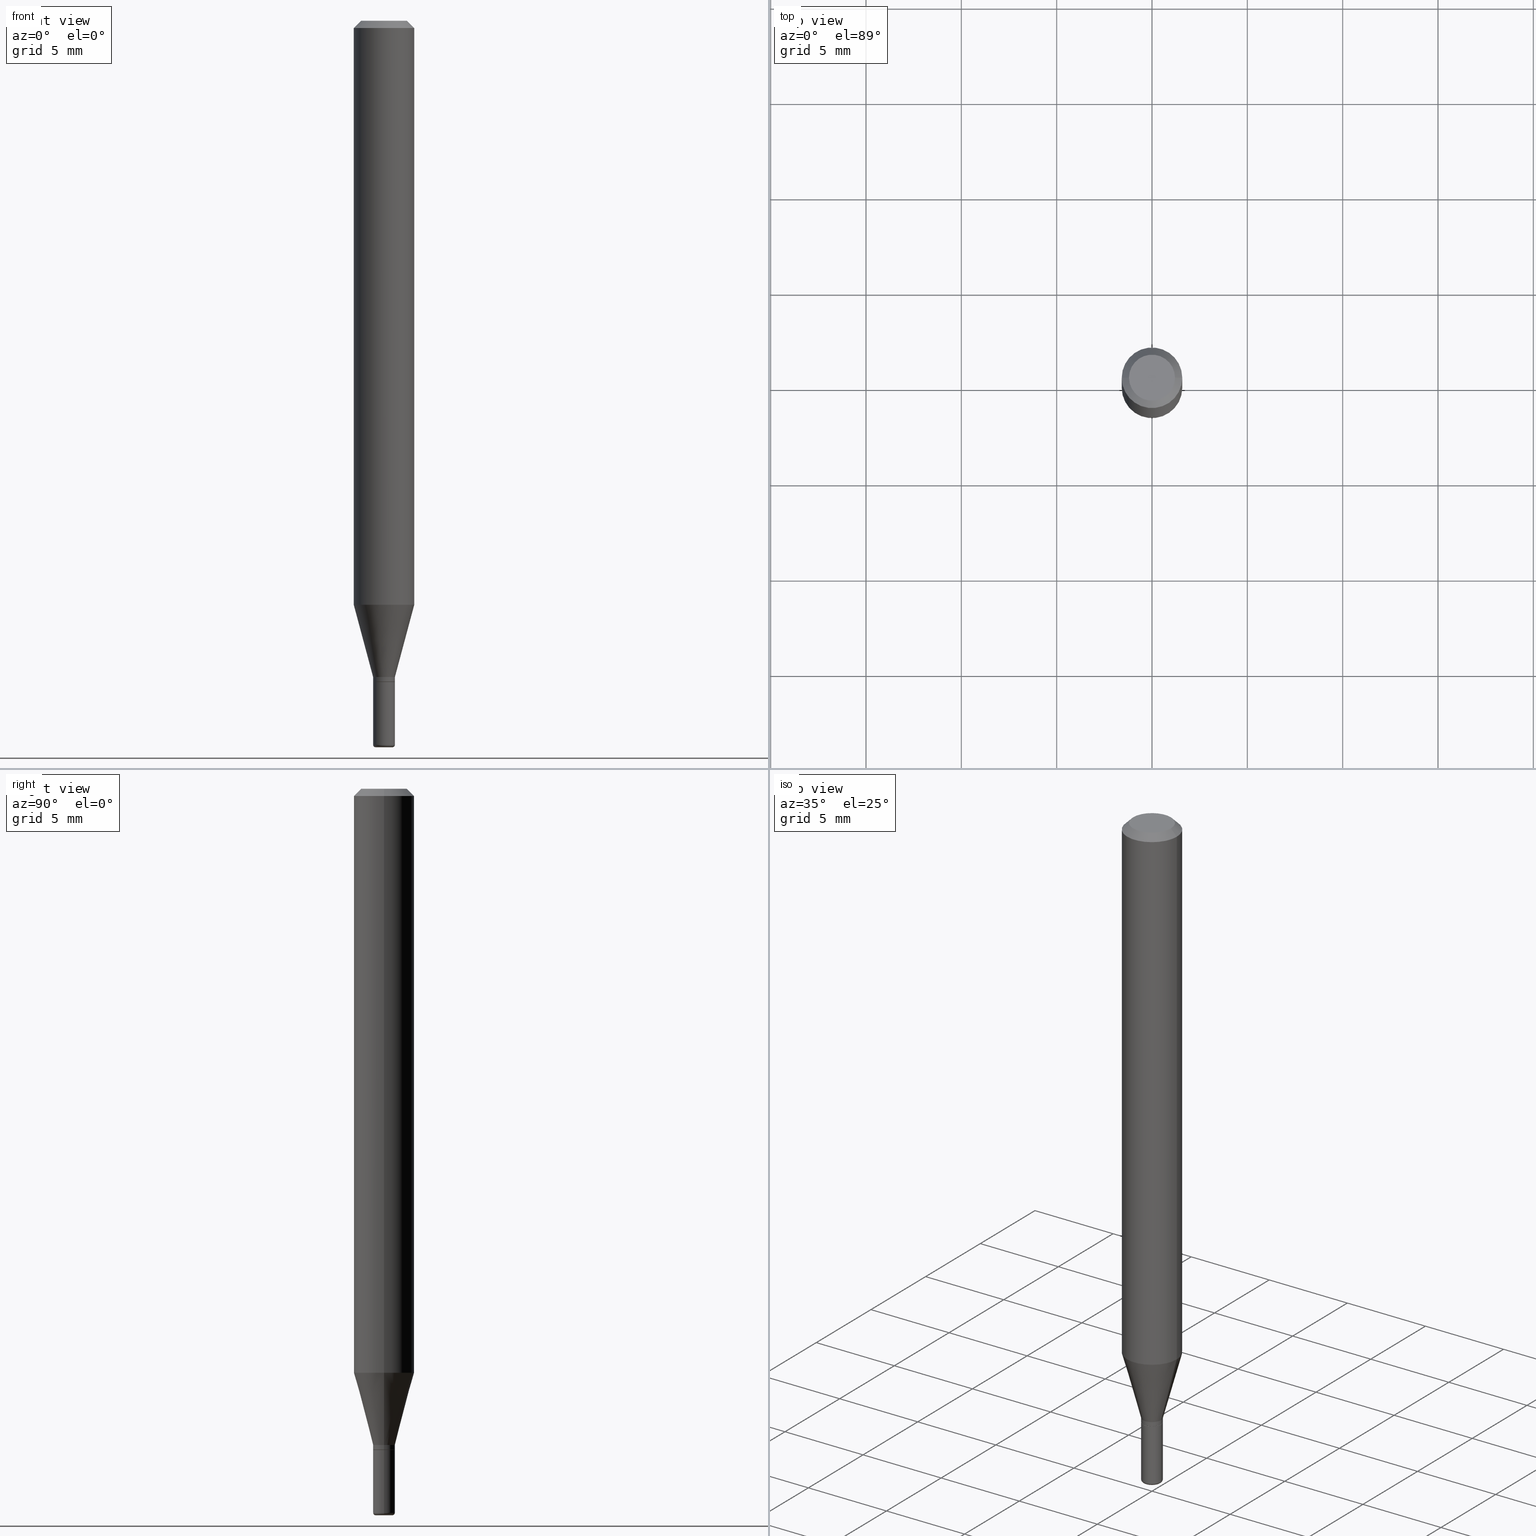
[diagram: canonical four-view strip — front | top / right | iso, engineering-drawing reading convention]
A machine part, canonical four-view strip (front | top / right | iso — engineering-drawing reading convention). The complete STEP part file that produces these views, byte-faithful:
ISO-10303-21;
HEADER;
FILE_DESCRIPTION (( 'STEP AP203' ),
    '1' );
FILE_NAME ('09143.STEP',
    '2024-02-29T22:36:47',
    ( '' ),
    ( '' ),
    'SwSTEP 2.0',
    'SolidWorks 2023',
    '' );
FILE_SCHEMA (( 'CONFIG_CONTROL_DESIGN' ));
ENDSEC;

DATA;
#1 = DIRECTION ( 'NONE',  ( 0.2588190451025206840, 1.565188264969626504E-15, 0.9659258262890682012 ) ) ;
#2 = ORIENTED_EDGE ( 'NONE', *, *, #340, .T. ) ;
#3 = ADVANCED_FACE ( 'NONE', ( #289 ), #60, .T. ) ;
#4 = DIRECTION ( 'NONE',  ( -2.445468806185136597E-29, 3.491481338843145583E-15, 1.000000000000000000 ) ) ;
#5 = ORIENTED_EDGE ( 'NONE', *, *, #256, .F. ) ;
#6 = CLOSED_SHELL ( 'NONE', ( #84, #98, #75, #250, #27, #411 ) ) ;
#7 = CARTESIAN_POINT ( 'NONE',  ( 3.313610232380861411E-29, -4.730957214132463998E-15, -1.355000000000000426 ) ) ;
#8 = VECTOR ( 'NONE', #109, 39.37007874015748143 ) ;
#9 = PERSON_AND_ORGANIZATION ( #518, #266 ) ;
#10 = EDGE_CURVE ( 'NONE', #320, #467, #14, .T. ) ;
#11 = DIRECTION ( 'NONE',  ( -2.445468806185136597E-29, 3.491481338843145583E-15, 1.000000000000000000 ) ) ;
#12 = LINE ( 'NONE', #244, #461 ) ;
#13 = PERSON_AND_ORGANIZATION_ROLE ( 'creator' ) ;
#14 = LINE ( 'NONE', #494, #330 ) ;
#15 = AXIS2_PLACEMENT_3D ( 'NONE', #370, #211, #168 ) ;
#16 = EDGE_CURVE ( 'NONE', #160, #79, #180, .T. ) ;
#17 = APPROVAL_PERSON_ORGANIZATION ( #487, #231, #57 ) ;
#18 = FACE_OUTER_BOUND ( 'NONE', #285, .T. ) ;
#19 = APPROVAL_DATE_TIME ( #174, #356 ) ;
#20 = DIRECTION ( 'NONE',  ( -2.445468806185136597E-29, 3.491481338843145583E-15, 1.000000000000000000 ) ) ;
#21 = APPLICATION_CONTEXT ( 'configuration controlled 3d designs of mechanical parts and assemblies' ) ;
#22 = EDGE_LOOP ( 'NONE', ( #106, #142, #394, #475 ) ) ;
#23 = CARTESIAN_POINT ( 'NONE',  ( -0.01749999999999999820, -5.086384757765590495E-15, -1.500000000000000444 ) ) ;
#24 = TOROIDAL_SURFACE ( 'NONE', #304, 0.01749999999999999820, 0.005000000000000179648 ) ;
#25 = AXIS2_PLACEMENT_3D ( 'NONE', #199, #312, #195 ) ;
#26 = DIRECTION ( 'NONE',  ( 1.000000000000000000, -6.982962677686283277E-15, 0.000000000000000000 ) ) ;
#27 = ADVANCED_FACE ( 'NONE', ( #412 ), #114, .T. ) ;
#28 = VERTEX_POINT ( 'NONE', #329 ) ;
#29 = DIRECTION ( 'NONE',  ( 0.7071067811865479058, -7.319954787623257623E-15, -0.7071067811865471286 ) ) ;
#30 = FACE_OUTER_BOUND ( 'NONE', #196, .T. ) ;
#31 = ORIENTED_EDGE ( 'NONE', *, *, #317, .F. ) ;
#32 = EDGE_CURVE ( 'NONE', #334, #113, #12, .T. ) ;
#33 = CONICAL_SURFACE ( 'NONE', #290, 0.02250000000000007896, 0.2617993877991494078 ) ;
#34 = CARTESIAN_POINT ( 'NONE',  ( 0.01749999999999999820, -5.359423855124228949E-15, -1.500000000000000444 ) ) ;
#35 = ORIENTED_EDGE ( 'NONE', *, *, #32, .F. ) ;
#36 = DIRECTION ( 'NONE',  ( 1.000000000000000000, -6.982962677686250144E-15, 0.000000000000000000 ) ) ;
#37 = ORIENTED_EDGE ( 'NONE', *, *, #287, .T. ) ;
#38 = CARTESIAN_POINT ( 'NONE',  ( -0.06250000000000000000, 4.440892098500626162E-16, -3.074334431409316114E-30 ) ) ;
#39 = VERTEX_POINT ( 'NONE', #93 ) ;
#40 = DIRECTION ( 'NONE',  ( -2.445468806185136597E-29, 3.491481338843145583E-15, 1.000000000000000000 ) ) ;
#41 = CIRCLE ( 'NONE', #348, 0.02249999999999999917 ) ;
#42 = ORIENTED_EDGE ( 'NONE', *, *, #256, .T. ) ;
#43 = PRODUCT_DEFINITION_FORMATION_WITH_SPECIFIED_SOURCE ( 'ANY', '', #508, .NOT_KNOWN. ) ;
#44 = ADVANCED_FACE ( 'NONE', ( #414 ), #216, .T. ) ;
#45 = DIRECTION ( 'NONE',  ( -2.445468806185136597E-29, 3.491481338843145583E-15, 1.000000000000000000 ) ) ;
#46 = ORIENTED_EDGE ( 'NONE', *, *, #140, .F. ) ;
#47 = DIRECTION ( 'NONE',  ( -0.7071067811864267805, 7.493145998869918709E-15, 0.7071067811866682540 ) ) ;
#48 = PRODUCT_RELATED_PRODUCT_CATEGORY ( 'detail', '', ( #508 ) ) ;
#49 = COORDINATED_UNIVERSAL_TIME_OFFSET ( 5, 0, .BEHIND. ) ;
#50 = CYLINDRICAL_SURFACE ( 'NONE', #314, 0.06250000000000000000 ) ;
#51 = AXIS2_PLACEMENT_3D ( 'NONE', #404, #11, #446 ) ;
#52 = SECURITY_CLASSIFICATION ( '', '', #135 ) ;
#53 = EDGE_CURVE ( 'NONE', #265, #39, #257, .T. ) ;
#54 = EDGE_CURVE ( 'NONE', #308, #277, #94, .T. ) ;
#55 = APPROVAL_DATE_TIME ( #445, #417 ) ;
#56 = LINE ( 'NONE', #92, #441 ) ;
#57 = APPROVAL_ROLE ( '' ) ;
#58 = DIRECTION ( 'NONE',  ( 1.000000000000000000, -6.982962677686286432E-15, 0.000000000000000000 ) ) ;
#59 = EDGE_CURVE ( 'NONE', #113, #308, #56, .T. ) ;
#60 = CYLINDRICAL_SURFACE ( 'NONE', #61, 0.06250000000000000000 ) ;
#61 = AXIS2_PLACEMENT_3D ( 'NONE', #485, #170, #215 ) ;
#62 = AXIS2_PLACEMENT_3D ( 'NONE', #91, #402, #128 ) ;
#63 = COORDINATED_UNIVERSAL_TIME_OFFSET ( 5, 0, .BEHIND. ) ;
#64 = DIRECTION ( 'NONE',  ( -2.445468806185136877E-29, 3.491481338843145188E-15, 1.000000000000000000 ) ) ;
#65 = PERSON_AND_ORGANIZATION ( #518, #266 ) ;
#66 = DIRECTION ( 'NONE',  ( 1.000000000000000000, -6.982962677686250144E-15, 0.000000000000000000 ) ) ;
#67 = CC_DESIGN_DATE_AND_TIME_ASSIGNMENT ( #247, #328, ( #510 ) ) ;
#68 = CARTESIAN_POINT ( 'NONE',  ( 3.338064920442711836E-29, -4.765872027520893280E-15, -1.364999999999999991 ) ) ;
#69 = AXIS2_PLACEMENT_3D ( 'NONE', #303, #221, #507 ) ;
#70 = CIRCLE ( 'NONE', #473, 0.005000000000000181383 ) ;
#71 = CARTESIAN_POINT ( 'NONE',  ( 3.668203209277632395E-31, -5.237222008264614861E-17, -0.01499999999999970281 ) ) ;
#72 = DIRECTION ( 'NONE',  ( -0.7071067811865479058, 2.468850131082261005E-15, -0.7071067811865471286 ) ) ;
#73 = ADVANCED_FACE ( 'NONE', ( #406 ), #33, .T. ) ;
#74 = DIRECTION ( 'NONE',  ( 1.000000000000000000, -6.982962677686265922E-15, 4.876176775795935793E-29 ) ) ;
#75 = ADVANCED_FACE ( 'NONE', ( #375 ), #136, .F. ) ;
#76 = CIRCLE ( 'NONE', #366, 0.02250000000000017958 ) ;
#77 = AXIS2_PLACEMENT_3D ( 'NONE', #354, #515, #359 ) ;
#78 = CARTESIAN_POINT ( 'NONE',  ( 3.655975865246779683E-29, -5.219764601570503930E-15, -1.495000000000000329 ) ) ;
#79 = VERTEX_POINT ( 'NONE', #333 ) ;
#80 = DIRECTION ( 'NONE',  ( -2.445468806185136597E-29, 3.491481338843145583E-15, 1.000000000000000000 ) ) ;
#81 = VERTEX_POINT ( 'NONE', #492 ) ;
#82 = CARTESIAN_POINT ( 'NONE',  ( 0.02249999999999999917, -4.922988687768834913E-15, -1.364999999999999991 ) ) ;
#83 = EDGE_LOOP ( 'NONE', ( #269, #89, #353, #302 ) ) ;
#84 = ADVANCED_FACE ( 'NONE', ( #205 ), #24, .T. ) ;
#85 = DIRECTION ( 'NONE',  ( -1.000000000000000000, 7.105427357601055501E-15, 0.000000000000000000 ) ) ;
#86 = CONICAL_SURFACE ( 'NONE', #222, 0.06250000000000000000, 0.7853981633974488341 ) ;
#87 = ORIENTED_EDGE ( 'NONE', *, *, #272, .F. ) ;
#88 = AXIS2_PLACEMENT_3D ( 'NONE', #350, #45, #436 ) ;
#89 = ORIENTED_EDGE ( 'NONE', *, *, #460, .T. ) ;
#90 = ADVANCED_FACE ( 'NONE', ( #453 ), #50, .T. ) ;
#91 = CARTESIAN_POINT ( 'NONE',  ( 0.000000000000000000, 0.000000000000000000, 0.000000000000000000 ) ) ;
#92 = CARTESIAN_POINT ( 'NONE',  ( -0.02250000000000008590, 1.598721155460231522E-16, -1.106760395307357984E-30 ) ) ;
#93 = CARTESIAN_POINT ( 'NONE',  ( -0.04750000000000000749, 3.578768372314221353E-16, 2.731847993664239060E-16 ) ) ;
#94 = CIRCLE ( 'NONE', #321, 0.02250000000000007896 ) ;
#95 = AXIS2_PLACEMENT_3D ( 'NONE', #288, #166, #323 ) ;
#96 = COORDINATED_UNIVERSAL_TIME_OFFSET ( 5, 0, .BEHIND. ) ;
#97 = CARTESIAN_POINT ( 'NONE',  ( 3.313610232380861411E-29, -4.730957214132463998E-15, -1.355000000000000426 ) ) ;
#98 = ADVANCED_FACE ( 'NONE', ( #18 ), #327, .T. ) ;
#99 = DIRECTION ( 'NONE',  ( 1.000000000000000000, -6.982962677686255667E-15, 4.883557194083108977E-29 ) ) ;
#100 = DIRECTION ( 'NONE',  ( -0.2588190451025206840, 5.211531920934545520E-15, 0.9659258262890682012 ) ) ;
#101 = APPROVAL_PERSON_ORGANIZATION ( #123, #417, #243 ) ;
#102 = FACE_OUTER_BOUND ( 'NONE', #440, .T. ) ;
#103 = PERSON_AND_ORGANIZATION ( #518, #266 ) ;
#104 = CARTESIAN_POINT ( 'NONE',  ( 3.338064920442711836E-29, -4.765872027520893280E-15, -1.364999999999999991 ) ) ;
#105 = CARTESIAN_POINT ( 'NONE',  ( 0.02200000000000008546, -4.919497206429991905E-15, -1.364999999999999991 ) ) ;
#106 = ORIENTED_EDGE ( 'NONE', *, *, #59, .F. ) ;
#107 = CIRCLE ( 'NONE', #397, 0.02250000000000008937 ) ;
#108 = CC_DESIGN_APPROVAL ( #231, ( #43 ) ) ;
#109 = DIRECTION ( 'NONE',  ( 0.7071067811864267805, -2.468850131080992517E-15, 0.7071067811866682540 ) ) ;
#110 = DIRECTION ( 'NONE',  ( 1.000000000000000000, -6.982962677686266711E-15, 4.852736867747365086E-29 ) ) ;
#111 = ORIENTED_EDGE ( 'NONE', *, *, #32, .T. ) ;
#112 = FACE_OUTER_BOUND ( 'NONE', #22, .T. ) ;
#113 = VERTEX_POINT ( 'NONE', #242 ) ;
#114 = TOROIDAL_SURFACE ( 'NONE', #51, 0.01749999999999999820, 0.005000000000000179648 ) ;
#115 = CIRCLE ( 'NONE', #423, 0.02250000000000017958 ) ;
#116 = CARTESIAN_POINT ( 'NONE',  ( 0.02250000000000008937, -4.921242947099413409E-15, -1.364499999999999824 ) ) ;
#117 = ORIENTED_EDGE ( 'NONE', *, *, #224, .F. ) ;
#118 = EDGE_CURVE ( 'NONE', #81, #200, #505, .T. ) ;
#119 = CARTESIAN_POINT ( 'NONE',  ( 3.338064920442711836E-29, -4.765872027520893280E-15, -1.364999999999999991 ) ) ;
#120 = EDGE_LOOP ( 'NONE', ( #435, #139, #144, #316 ) ) ;
#121 = CARTESIAN_POINT ( 'NONE',  ( -0.02200000000000008546, -4.606903398479559111E-15, -1.364999999999999991 ) ) ;
#122 = ORIENTED_EDGE ( 'NONE', *, *, #138, .T. ) ;
#123 = PERSON_AND_ORGANIZATION ( #518, #266 ) ;
#124 = CIRCLE ( 'NONE', #380, 0.06250000000000000000 ) ;
#125 = CC_DESIGN_PERSON_AND_ORGANIZATION_ASSIGNMENT ( #9, #204, ( #508 ) ) ;
#126 = ORIENTED_EDGE ( 'NONE', *, *, #324, .F. ) ;
#127 = LOCAL_TIME ( 17, 36, 47.00000000000000000, #96 ) ;
#128 = DIRECTION ( 'NONE',  ( 1.000000000000000000, -6.982962677686265922E-15, 4.876176775795935793E-29 ) ) ;
#129 = ORIENTED_EDGE ( 'NONE', *, *, #324, .T. ) ;
#130 = CARTESIAN_POINT ( 'NONE',  ( 0.000000000000000000, 0.000000000000000000, 0.000000000000000000 ) ) ;
#131 = APPROVAL_STATUS ( 'not_yet_approved' ) ;
#132 = DIRECTION ( 'NONE',  ( -2.445468806185136597E-29, 3.491481338843145583E-15, 1.000000000000000000 ) ) ;
#133 = VECTOR ( 'NONE', #100, 39.37007874015748854 ) ;
#134 =( GEOMETRIC_REPRESENTATION_CONTEXT ( 3 ) GLOBAL_UNCERTAINTY_ASSIGNED_CONTEXT ( ( #155 ) ) GLOBAL_UNIT_ASSIGNED_CONTEXT ( ( #482, #171, #294 ) ) REPRESENTATION_CONTEXT ( 'NONE', 'WORKASPACE' ) );
#135 = SECURITY_CLASSIFICATION_LEVEL ( 'unclassified' ) ;
#136 = PLANE ( 'NONE',  #15 ) ;
#137 = DIRECTION ( 'NONE',  ( 1.000000000000000000, -6.982962677686266711E-15, 0.000000000000000000 ) ) ;
#138 = EDGE_CURVE ( 'NONE', #308, #79, #377, .T. ) ;
#139 = ORIENTED_EDGE ( 'NONE', *, *, #59, .T. ) ;
#140 = EDGE_CURVE ( 'NONE', #28, #235, #124, .T. ) ;
#141 = DIRECTION ( 'NONE',  ( -2.445468806185136877E-29, 3.491481338843145188E-15, 1.000000000000000000 ) ) ;
#142 = ORIENTED_EDGE ( 'NONE', *, *, #164, .T. ) ;
#143 = PLANE ( 'NONE',  #450 ) ;
#144 = ORIENTED_EDGE ( 'NONE', *, *, #504, .F. ) ;
#145 = LINE ( 'NONE', #420, #516 ) ;
#146 = ORIENTED_EDGE ( 'NONE', *, *, #499, .T. ) ;
#147 = CIRCLE ( 'NONE', #187, 0.01749999999999999820 ) ;
#148 = LOCAL_TIME ( 17, 36, 47.00000000000000000, #337 ) ;
#149 = DIRECTION ( 'NONE',  ( 1.000000000000000000, -6.982962677686261977E-15, 0.000000000000000000 ) ) ;
#150 = EDGE_LOOP ( 'NONE', ( #87, #31 ) ) ;
#151 = LINE ( 'NONE', #201, #481 ) ;
#152 = EDGE_LOOP ( 'NONE', ( #37, #428 ) ) ;
#153 = LINE ( 'NONE', #38, #349 ) ;
#154 = ORIENTED_EDGE ( 'NONE', *, *, #317, .T. ) ;
#155 = UNCERTAINTY_MEASURE_WITH_UNIT (LENGTH_MEASURE( 1.000000000000000082E-05 ), #482, 'distance_accuracy_value', 'NONE');
#156 = LOCAL_TIME ( 17, 36, 47.00000000000000000, #49 ) ;
#157 = CARTESIAN_POINT ( 'NONE',  ( 0.06250000000000000000, -4.364351673553916694E-16, 3.047610484872459871E-30 ) ) ;
#158 = ORIENTED_EDGE ( 'NONE', *, *, #176, .T. ) ;
#159 = CARTESIAN_POINT ( 'NONE',  ( 3.338064920442711836E-29, -4.765872027520893280E-15, -1.364999999999999991 ) ) ;
#160 = VERTEX_POINT ( 'NONE', #502 ) ;
#161 = ADVANCED_FACE ( 'NONE', ( #30 ), #143, .F. ) ;
#162 = DIRECTION ( 'NONE',  ( 7.105427357601001859E-15, 1.000000000000000000, -3.491481338843145583E-15 ) ) ;
#163 = ORIENTED_EDGE ( 'NONE', *, *, #392, .F. ) ;
#164 = EDGE_CURVE ( 'NONE', #113, #479, #107, .T. ) ;
#165 = AXIS2_PLACEMENT_3D ( 'NONE', #130, #296, #454 ) ;
#166 = DIRECTION ( 'NONE',  ( 0.000000000000000000, 0.000000000000000000, 1.000000000000000000 ) ) ;
#167 = DIRECTION ( 'NONE',  ( -1.000000000000000000, 6.982962677686266711E-15, 0.000000000000000000 ) ) ;
#168 = DIRECTION ( 'NONE',  ( -1.000000000000000000, 6.982962677686265922E-15, -4.876176775795935793E-29 ) ) ;
#169 = CALENDAR_DATE ( 2024, 29, 2 ) ;
#170 = DIRECTION ( 'NONE',  ( -2.445468806185136597E-29, 3.491481338843145583E-15, 1.000000000000000000 ) ) ;
#171 =( NAMED_UNIT ( * ) PLANE_ANGLE_UNIT ( ) SI_UNIT ( $, .RADIAN. ) );
#172 = DIRECTION ( 'NONE',  ( -2.445468806185136597E-29, 3.491481338843145583E-15, 1.000000000000000000 ) ) ;
#173 = CIRCLE ( 'NONE', #372, 0.02249999999999999917 ) ;
#174 = DATE_AND_TIME ( #299, #148 ) ;
#175 = DIRECTION ( 'NONE',  ( -2.445468806185136597E-29, 3.491481338843145583E-15, 1.000000000000000000 ) ) ;
#176 = EDGE_CURVE ( 'NONE', #39, #28, #300, .T. ) ;
#177 = CARTESIAN_POINT ( 'NONE',  ( 0.02250000000000007896, -4.888073874380405630E-15, -1.355000000000000426 ) ) ;
#178 = DIRECTION ( 'NONE',  ( 1.000000000000000000, -6.982962677686269077E-15, 0.000000000000000000 ) ) ;
#179 = VERTEX_POINT ( 'NONE', #378 ) ;
#180 = CIRCLE ( 'NONE', #471, 0.06250000000000000000 ) ;
#181 = AXIS2_PLACEMENT_3D ( 'NONE', #119, #239, #399 ) ;
#182 = CARTESIAN_POINT ( 'NONE',  ( 0.01749999999999999820, -5.341966448430012335E-15, -1.495000000000000107 ) ) ;
#183 = MANIFOLD_SOLID_BREP ( 'Body-Move/Copy2[2]', #229 ) ;
#184 = DIRECTION ( 'NONE',  ( -2.445468806185136597E-29, 3.491481338843145583E-15, 1.000000000000000000 ) ) ;
#185 = CARTESIAN_POINT ( 'NONE',  ( -0.02250000000000008937, 1.598721155460231769E-16, -1.106760395307358334E-30 ) ) ;
#186 = ORIENTED_EDGE ( 'NONE', *, *, #164, .F. ) ;
#187 = AXIS2_PLACEMENT_3D ( 'NONE', #438, #4, #36 ) ;
#188 = CONICAL_SURFACE ( 'NONE', #181, 0.02200000000000008546, 0.7853981633972775267 ) ;
#189 = PLANE ( 'NONE',  #292 ) ;
#190 = EDGE_LOOP ( 'NONE', ( #35, #2, #517, #186 ) ) ;
#191 = ADVANCED_BREP_SHAPE_REPRESENTATION ( '09143', ( #449, #183, #95 ), #134 ) ;
#192 = CC_DESIGN_PERSON_AND_ORGANIZATION_ASSIGNMENT ( #491, #331, ( #43 ) ) ;
#193 = DIRECTION ( 'NONE',  ( 1.000000000000000000, -6.982962677686255667E-15, 0.000000000000000000 ) ) ;
#194 = ORIENTED_EDGE ( 'NONE', *, *, #54, .T. ) ;
#195 = DIRECTION ( 'NONE',  ( 1.000000000000000000, -6.982962677686286432E-15, 0.000000000000000000 ) ) ;
#196 = EDGE_LOOP ( 'NONE', ( #431, #503 ) ) ;
#197 = AXIS2_PLACEMENT_3D ( 'NONE', #419, #20, #66 ) ;
#198 = CIRCLE ( 'NONE', #322, 0.02250000000000008937 ) ;
#199 = CARTESIAN_POINT ( 'NONE',  ( 3.313610232380861411E-29, -4.730957214132463998E-15, -1.355000000000000426 ) ) ;
#200 = VERTEX_POINT ( 'NONE', #260 ) ;
#201 = CARTESIAN_POINT ( 'NONE',  ( 0.02250000000000007896, -4.888073874380405630E-15, -1.355000000000000426 ) ) ;
#202 = ORIENTED_EDGE ( 'NONE', *, *, #176, .F. ) ;
#203 = DESIGN_CONTEXT ( 'detailed design', #21, 'design' ) ;
#204 = PERSON_AND_ORGANIZATION_ROLE ( 'design_owner' ) ;
#205 = FACE_OUTER_BOUND ( 'NONE', #360, .T. ) ;
#206 = AXIS2_PLACEMENT_3D ( 'NONE', #307, #184, #149 ) ;
#207 =( LENGTH_UNIT ( ) NAMED_UNIT ( * ) SI_UNIT ( $, .METRE. ) );
#208 = AXIS2_PLACEMENT_3D ( 'NONE', #234, #393, #74 ) ;
#209 = DIRECTION ( 'NONE',  ( -2.445468806185136597E-29, 3.491481338843145583E-15, 1.000000000000000000 ) ) ;
#210 = FACE_OUTER_BOUND ( 'NONE', #120, .T. ) ;
#211 = DIRECTION ( 'NONE',  ( 2.438088387897960049E-29, -3.491481338843145188E-15, -1.000000000000000000 ) ) ;
#212 = DIRECTION ( 'NONE',  ( 1.000000000000000000, -6.982962677686286432E-15, 0.000000000000000000 ) ) ;
#213 = ORIENTED_EDGE ( 'NONE', *, *, #486, .T. ) ;
#214 = APPLICATION_PROTOCOL_DEFINITION ( 'international standard', 'config_control_design', 1994, #403 ) ;
#215 = DIRECTION ( 'NONE',  ( 1.000000000000000000, -6.982962677686266711E-15, 4.876176775795935793E-29 ) ) ;
#216 = CONICAL_SURFACE ( 'NONE', #430, 0.06250000000000000000, 0.7853981633974488341 ) ;
#217 = ADVANCED_FACE ( 'NONE', ( #226 ), #86, .T. ) ;
#218 = CALENDAR_DATE ( 2024, 29, 2 ) ;
#219 = CARTESIAN_POINT ( 'NONE',  ( 3.668203209277632395E-31, -5.237222008264614861E-17, -0.01499999999999970281 ) ) ;
#220 = CARTESIAN_POINT ( 'NONE',  ( -0.06250000000000000000, 3.840629472727455270E-16, -0.01499999999999970281 ) ) ;
#221 = DIRECTION ( 'NONE',  ( -2.445468806185136597E-29, 3.491481338843145583E-15, 1.000000000000000000 ) ) ;
#222 = AXIS2_PLACEMENT_3D ( 'NONE', #219, #381, #385 ) ;
#223 = DIRECTION ( 'NONE',  ( 2.438088387897960049E-29, -3.491481338843145188E-15, -1.000000000000000000 ) ) ;
#224 = EDGE_CURVE ( 'NONE', #265, #235, #145, .T. ) ;
#225 = ORIENTED_EDGE ( 'NONE', *, *, #118, .T. ) ;
#226 = FACE_OUTER_BOUND ( 'NONE', #477, .T. ) ;
#227 = PLANE ( 'NONE',  #208 ) ;
#228 = EDGE_LOOP ( 'NONE', ( #343, #459 ) ) ;
#229 = CLOSED_SHELL ( 'NONE', ( #506, #413, #44, #3, #484, #73, #90, #217, #161, #379, #255, #425 ) ) ;
#230 = AXIS2_PLACEMENT_3D ( 'NONE', #159, #427, #315 ) ;
#231 = APPROVAL ( #131, 'UNSPECIFIED' ) ;
#232 = DIRECTION ( 'NONE',  ( 1.000000000000000000, -6.982962677686266711E-15, 0.000000000000000000 ) ) ;
#233 = ORIENTED_EDGE ( 'NONE', *, *, #53, .F. ) ;
#234 = CARTESIAN_POINT ( 'NONE',  ( 3.582686580359767159E-29, -5.359686688179454114E-15, -1.500000000000000444 ) ) ;
#235 = VERTEX_POINT ( 'NONE', #347 ) ;
#236 = PRODUCT_DEFINITION_SHAPE ( 'NONE', 'NONE',  #510 ) ;
#237 = DIRECTION ( 'NONE',  ( 1.000000000000000000, -6.982962677686283277E-15, 0.000000000000000000 ) ) ;
#238 = ORIENTED_EDGE ( 'NONE', *, *, #460, .F. ) ;
#239 = DIRECTION ( 'NONE',  ( -2.445468806185136597E-29, 3.491481338843145583E-15, 1.000000000000000000 ) ) ;
#240 = ORIENTED_EDGE ( 'NONE', *, *, #270, .T. ) ;
#241 = DIRECTION ( 'NONE',  ( -2.445468806185136597E-29, 3.491481338843145583E-15, 1.000000000000000000 ) ) ;
#242 = CARTESIAN_POINT ( 'NONE',  ( -0.02250000000000008937, -4.604254171305447910E-15, -1.364499999999999824 ) ) ;
#243 = APPROVAL_ROLE ( '' ) ;
#244 = CARTESIAN_POINT ( 'NONE',  ( -0.02200000000000008546, -4.609552625653671101E-15, -1.364999999999999991 ) ) ;
#245 = CC_DESIGN_DATE_AND_TIME_ASSIGNMENT ( #432, #418, ( #52 ) ) ;
#246 = AXIS2_PLACEMENT_3D ( 'NONE', #252, #409, #488 ) ;
#247 = DATE_AND_TIME ( #483, #156 ) ;
#248 = CIRCLE ( 'NONE', #358, 0.04750000000000000749 ) ;
#249 = DIRECTION ( 'NONE',  ( 2.445468806185136597E-29, -3.491481338843145583E-15, -1.000000000000000000 ) ) ;
#250 = ADVANCED_FACE ( 'NONE', ( #102 ), #457, .T. ) ;
#251 = DATE_AND_TIME ( #291, #127 ) ;
#252 = CARTESIAN_POINT ( 'NONE',  ( -6.680649051745406845E-45, 9.538196290434862081E-31, 2.731847993664263218E-16 ) ) ;
#253 = MECHANICAL_CONTEXT ( 'NONE', #403, 'mechanical' ) ;
#254 = DIRECTION ( 'NONE',  ( -2.445468806185136597E-29, 3.491481338843145583E-15, 1.000000000000000000 ) ) ;
#255 = ADVANCED_FACE ( 'NONE', ( #344 ), #283, .T. ) ;
#256 = EDGE_CURVE ( 'NONE', #400, #320, #357, .T. ) ;
#257 = CIRCLE ( 'NONE', #246, 0.04750000000000000749 ) ;
#258 = CARTESIAN_POINT ( 'NONE',  ( 0.04750000000000000749, -4.035134999187568762E-16, 2.731847993664288856E-16 ) ) ;
#259 = CIRCLE ( 'NONE', #230, 0.02200000000000008546 ) ;
#260 = CARTESIAN_POINT ( 'NONE',  ( -0.02249999999999999917, -4.832946198999675921E-15, -1.364999999999999991 ) ) ;
#261 = DIRECTION ( 'NONE',  ( -2.445468806185136597E-29, 3.491481338843145583E-15, 1.000000000000000000 ) ) ;
#262 = EDGE_CURVE ( 'NONE', #479, #277, #301, .T. ) ;
#263 = PERSON_AND_ORGANIZATION_ROLE ( 'classification_officer' ) ;
#264 = DIRECTION ( 'NONE',  ( -2.445468806185136597E-29, 3.491481338843145583E-15, 1.000000000000000000 ) ) ;
#265 = VERTEX_POINT ( 'NONE', #258 ) ;
#266 = ORGANIZATION ( 'UNSPECIFIED', 'UNSPECIFIED', '' ) ;
#267 = CARTESIAN_POINT ( 'NONE',  ( 0.02250000000000008590, -1.571166602479415828E-16, 1.097139774554089687E-30 ) ) ;
#268 = CARTESIAN_POINT ( 'NONE',  ( 0.02250000000000017958, -5.376881261818446351E-15, -1.495000000000000329 ) ) ;
#269 = ORIENTED_EDGE ( 'NONE', *, *, #16, .T. ) ;
#270 = EDGE_CURVE ( 'NONE', #79, #160, #415, .T. ) ;
#271 = FACE_OUTER_BOUND ( 'NONE', #150, .T. ) ;
#272 = EDGE_CURVE ( 'NONE', #400, #282, #297, .T. ) ;
#273 = ORIENTED_EDGE ( 'NONE', *, *, #371, .T. ) ;
#274 = CIRCLE ( 'NONE', #407, 0.06250000000000000000 ) ;
#275 = CC_DESIGN_APPROVAL ( #417, ( #510 ) ) ;
#276 = DIRECTION ( 'NONE',  ( -2.438088387897960049E-29, 3.491481338843145188E-15, 1.000000000000000000 ) ) ;
#277 = VERTEX_POINT ( 'NONE', #177 ) ;
#278 = FACE_OUTER_BOUND ( 'NONE', #355, .T. ) ;
#279 = ORIENTED_EDGE ( 'NONE', *, *, #140, .T. ) ;
#280 = EDGE_CURVE ( 'NONE', #200, #467, #41, .T. ) ;
#281 = FACE_OUTER_BOUND ( 'NONE', #228, .T. ) ;
#282 = VERTEX_POINT ( 'NONE', #23 ) ;
#283 = CONICAL_SURFACE ( 'NONE', #206, 0.02200000000000008546, 0.7853981633972775267 ) ;
#284 = APPROVAL_STATUS ( 'not_yet_approved' ) ;
#285 = EDGE_LOOP ( 'NONE', ( #362, #225, #501, #426 ) ) ;
#286 = DIRECTION ( 'NONE',  ( -2.445468806185136877E-29, 3.491481338843145188E-15, 1.000000000000000000 ) ) ;
#287 = EDGE_CURVE ( 'NONE', #467, #200, #173, .T. ) ;
#288 = CARTESIAN_POINT ( 'NONE',  ( 0.000000000000000000, 0.000000000000000000, 0.000000000000000000 ) ) ;
#289 = FACE_OUTER_BOUND ( 'NONE', #83, .T. ) ;
#290 = AXIS2_PLACEMENT_3D ( 'NONE', #97, #175, #58 ) ;
#291 = CALENDAR_DATE ( 2024, 29, 2 ) ;
#292 = AXIS2_PLACEMENT_3D ( 'NONE', #318, #276, #469 ) ;
#293 = DIRECTION ( 'NONE',  ( 1.000000000000000000, -6.982962677686286432E-15, 0.000000000000000000 ) ) ;
#294 =( NAMED_UNIT ( * ) SI_UNIT ( $, .STERADIAN. ) SOLID_ANGLE_UNIT ( ) );
#295 = CARTESIAN_POINT ( 'NONE',  ( 3.655975865246779122E-29, -5.219764601570503141E-15, -1.495000000000000107 ) ) ;
#296 = DIRECTION ( 'NONE',  ( -2.445468806185136597E-29, 3.491481338843145583E-15, 1.000000000000000000 ) ) ;
#297 = CIRCLE ( 'NONE', #197, 0.01749999999999999820 ) ;
#298 = DIRECTION ( 'NONE',  ( 1.000000000000000000, -6.982962677686273810E-15, 0.000000000000000000 ) ) ;
#299 = CALENDAR_DATE ( 2024, 29, 2 ) ;
#300 = LINE ( 'NONE', #220, #338 ) ;
#301 = LINE ( 'NONE', #267, #480 ) ;
#302 = ORIENTED_EDGE ( 'NONE', *, *, #499, .F. ) ;
#303 = CARTESIAN_POINT ( 'NONE',  ( 0.000000000000000000, 0.000000000000000000, 0.000000000000000000 ) ) ;
#304 = AXIS2_PLACEMENT_3D ( 'NONE', #295, #209, #99 ) ;
#305 = LOCAL_TIME ( 17, 36, 47.00000000000000000, #63 ) ;
#306 = EDGE_CURVE ( 'NONE', #179, #479, #458, .T. ) ;
#307 = CARTESIAN_POINT ( 'NONE',  ( 3.338064920442711836E-29, -4.765872027520893280E-15, -1.364999999999999991 ) ) ;
#308 = VERTEX_POINT ( 'NONE', #511 ) ;
#309 = FACE_OUTER_BOUND ( 'NONE', #472, .T. ) ;
#310 = EDGE_LOOP ( 'NONE', ( #233, #382, #273, #202 ) ) ;
#311 = SHAPE_DEFINITION_REPRESENTATION ( #236, #191 ) ;
#312 = DIRECTION ( 'NONE',  ( -2.445468806185136597E-29, 3.491481338843145583E-15, 1.000000000000000000 ) ) ;
#313 = ORIENTED_EDGE ( 'NONE', *, *, #10, .T. ) ;
#314 = AXIS2_PLACEMENT_3D ( 'NONE', #367, #254, #365 ) ;
#315 = DIRECTION ( 'NONE',  ( 1.000000000000000000, -6.982962677686261977E-15, 0.000000000000000000 ) ) ;
#316 = ORIENTED_EDGE ( 'NONE', *, *, #262, .F. ) ;
#317 = EDGE_CURVE ( 'NONE', #282, #400, #147, .T. ) ;
#318 = CARTESIAN_POINT ( 'NONE',  ( 3.338064920442711836E-29, -4.765872027520893280E-15, -1.364999999999999991 ) ) ;
#319 = ORIENTED_EDGE ( 'NONE', *, *, #280, .F. ) ;
#320 = VERTEX_POINT ( 'NONE', #268 ) ;
#321 = AXIS2_PLACEMENT_3D ( 'NONE', #7, #132, #293 ) ;
#322 = AXIS2_PLACEMENT_3D ( 'NONE', #352, #429, #237 ) ;
#323 = DIRECTION ( 'NONE',  ( 1.000000000000000000, 0.000000000000000000, 0.000000000000000000 ) ) ;
#324 = EDGE_CURVE ( 'NONE', #277, #160, #151, .T. ) ;
#325 = CARTESIAN_POINT ( 'NONE',  ( 2.948545679060552191E-29, -4.209741784122815192E-15, -1.205717967697245596 ) ) ;
#326 = PERSON_AND_ORGANIZATION ( #518, #266 ) ;
#327 = CYLINDRICAL_SURFACE ( 'NONE', #165, 0.02250000000000008937 ) ;
#328 = DATE_TIME_ROLE ( 'creation_date' ) ;
#329 = CARTESIAN_POINT ( 'NONE',  ( -0.06250000000000000000, -1.686967792252668322E-15, -0.01499999999999970281 ) ) ;
#330 = VECTOR ( 'NONE', #286, 39.37007874015748143 ) ;
#331 = PERSON_AND_ORGANIZATION_ROLE ( 'design_supplier' ) ;
#332 = AXIS2_PLACEMENT_3D ( 'NONE', #447, #241, #212 ) ;
#333 = CARTESIAN_POINT ( 'NONE',  ( -0.06250000000000000000, -3.765652574272752576E-15, -1.205717967697245596 ) ) ;
#334 = VERTEX_POINT ( 'NONE', #121 ) ;
#335 = DIRECTION ( 'NONE',  ( 1.000000000000000000, -6.982962677686269077E-15, 0.000000000000000000 ) ) ;
#336 = EDGE_LOOP ( 'NONE', ( #163, #154, #42, #384 ) ) ;
#337 = COORDINATED_UNIVERSAL_TIME_OFFSET ( 5, 0, .BEHIND. ) ;
#338 = VECTOR ( 'NONE', #72, 39.37007874015748143 ) ;
#339 = DIRECTION ( 'NONE',  ( -2.445468806185136597E-29, 3.491481338843145583E-15, 1.000000000000000000 ) ) ;
#340 = EDGE_CURVE ( 'NONE', #334, #179, #259, .T. ) ;
#341 = ORIENTED_EDGE ( 'NONE', *, *, #363, .T. ) ;
#342 = CARTESIAN_POINT ( 'NONE',  ( -0.02250000000000007896, -4.571085098586440920E-15, -1.355000000000000426 ) ) ;
#343 = ORIENTED_EDGE ( 'NONE', *, *, #486, .F. ) ;
#344 = FACE_OUTER_BOUND ( 'NONE', #190, .T. ) ;
#345 = ORIENTED_EDGE ( 'NONE', *, *, #470, .F. ) ;
#346 = DIMENSIONAL_EXPONENTS ( 1.000000000000000000, 0.000000000000000000, 0.000000000000000000, 0.000000000000000000, 0.000000000000000000, 0.000000000000000000, 0.000000000000000000 ) ;
#347 = CARTESIAN_POINT ( 'NONE',  ( 0.06250000000000000000, -4.888073874380378612E-16, -0.01499999999999970281 ) ) ;
#348 = AXIS2_PLACEMENT_3D ( 'NONE', #104, #495, #335 ) ;
#349 = VECTOR ( 'NONE', #464, 39.37007874015748143 ) ;
#350 = CARTESIAN_POINT ( 'NONE',  ( 0.000000000000000000, 0.000000000000000000, 0.000000000000000000 ) ) ;
#351 = ORIENTED_EDGE ( 'NONE', *, *, #138, .F. ) ;
#352 = CARTESIAN_POINT ( 'NONE',  ( 3.336842186039618474E-29, -4.764126286851472566E-15, -1.364499999999999824 ) ) ;
#353 = ORIENTED_EDGE ( 'NONE', *, *, #371, .F. ) ;
#354 = CARTESIAN_POINT ( 'NONE',  ( 3.338064920442711836E-29, -4.765872027520893280E-15, -1.364999999999999991 ) ) ;
#355 = EDGE_LOOP ( 'NONE', ( #437, #122, #496, #126 ) ) ;
#356 = APPROVAL ( #468, 'UNSPECIFIED' ) ;
#357 = CIRCLE ( 'NONE', #497, 0.005000000000000181383 ) ;
#358 = AXIS2_PLACEMENT_3D ( 'NONE', #476, #80, #110 ) ;
#359 = DIRECTION ( 'NONE',  ( 1.000000000000000000, -6.982962677686261977E-15, 0.000000000000000000 ) ) ;
#360 = EDGE_LOOP ( 'NONE', ( #465, #514, #391, #5 ) ) ;
#361 = DIRECTION ( 'NONE',  ( 1.000000000000000000, -6.982962677686255667E-15, 0.000000000000000000 ) ) ;
#362 = ORIENTED_EDGE ( 'NONE', *, *, #455, .T. ) ;
#363 = EDGE_CURVE ( 'NONE', #81, #320, #76, .T. ) ;
#364 = DIRECTION ( 'NONE',  ( -2.445468806185136877E-29, 3.491481338843145188E-15, 1.000000000000000000 ) ) ;
#365 = DIRECTION ( 'NONE',  ( 1.000000000000000000, -6.982962677686266711E-15, 4.876176775795935793E-29 ) ) ;
#366 = AXIS2_PLACEMENT_3D ( 'NONE', #474, #434, #361 ) ;
#367 = CARTESIAN_POINT ( 'NONE',  ( 0.000000000000000000, 0.000000000000000000, 0.000000000000000000 ) ) ;
#368 = DIRECTION ( 'NONE',  ( 1.000000000000000000, -6.982962677686270655E-15, 0.000000000000000000 ) ) ;
#369 = PERSON_AND_ORGANIZATION ( #518, #266 ) ;
#370 = CARTESIAN_POINT ( 'NONE',  ( 1.571166602479743698E-16, 0.02249999999999523215, -1.364999999999999991 ) ) ;
#371 = EDGE_CURVE ( 'NONE', #235, #28, #274, .T. ) ;
#372 = AXIS2_PLACEMENT_3D ( 'NONE', #68, #261, #178 ) ;
#373 = APPLICATION_PROTOCOL_DEFINITION ( 'international standard', 'config_control_design', 1994, #21 ) ;
#374 = APPROVAL_PERSON_ORGANIZATION ( #65, #356, #376 ) ;
#375 = FACE_OUTER_BOUND ( 'NONE', #152, .T. ) ;
#376 = APPROVAL_ROLE ( '' ) ;
#377 = LINE ( 'NONE', #342, #133 ) ;
#378 = CARTESIAN_POINT ( 'NONE',  ( 0.02200000000000008546, -4.919497206429991905E-15, -1.364999999999999991 ) ) ;
#379 = ADVANCED_FACE ( 'NONE', ( #281 ), #189, .F. ) ;
#380 = AXIS2_PLACEMENT_3D ( 'NONE', #71, #264, #137 ) ;
#381 = DIRECTION ( 'NONE',  ( 2.445468806185136597E-29, -3.491481338843145583E-15, -1.000000000000000000 ) ) ;
#382 = ORIENTED_EDGE ( 'NONE', *, *, #224, .T. ) ;
#383 = DIRECTION ( 'NONE',  ( -1.000000000000000000, 6.982962677686265922E-15, -4.876176775795935793E-29 ) ) ;
#384 = ORIENTED_EDGE ( 'NONE', *, *, #363, .F. ) ;
#385 = DIRECTION ( 'NONE',  ( -1.000000000000000000, 6.982962677686266711E-15, 0.000000000000000000 ) ) ;
#386 = ORIENTED_EDGE ( 'NONE', *, *, #118, .F. ) ;
#387 = CYLINDRICAL_SURFACE ( 'NONE', #88, 0.02250000000000008590 ) ;
#388 = ORIENTED_EDGE ( 'NONE', *, *, #433, .F. ) ;
#389 = CC_DESIGN_SECURITY_CLASSIFICATION ( #52, ( #43 ) ) ;
#390 = DIRECTION ( 'NONE',  ( -2.445468806185136597E-29, 3.491481338843145583E-15, 1.000000000000000000 ) ) ;
#391 = ORIENTED_EDGE ( 'NONE', *, *, #455, .F. ) ;
#392 = EDGE_CURVE ( 'NONE', #282, #81, #70, .T. ) ;
#393 = DIRECTION ( 'NONE',  ( -2.438088387897960049E-29, 3.491481338843145188E-15, 1.000000000000000000 ) ) ;
#394 = ORIENTED_EDGE ( 'NONE', *, *, #262, .T. ) ;
#395 = LINE ( 'NONE', #157, #398 ) ;
#396 = ORIENTED_EDGE ( 'NONE', *, *, #270, .F. ) ;
#397 = AXIS2_PLACEMENT_3D ( 'NONE', #424, #339, #26 ) ;
#398 = VECTOR ( 'NONE', #364, 39.37007874015748143 ) ;
#399 = DIRECTION ( 'NONE',  ( 1.000000000000000000, -6.982962677686261977E-15, 0.000000000000000000 ) ) ;
#400 = VERTEX_POINT ( 'NONE', #34 ) ;
#401 = CC_DESIGN_PERSON_AND_ORGANIZATION_ASSIGNMENT ( #369, #13, ( #43 ) ) ;
#402 = DIRECTION ( 'NONE',  ( -2.445468806185136597E-29, 3.491481338843145583E-15, 1.000000000000000000 ) ) ;
#403 = APPLICATION_CONTEXT ( 'configuration controlled 3d designs of mechanical parts and assemblies' ) ;
#404 = CARTESIAN_POINT ( 'NONE',  ( 3.655975865246779122E-29, -5.219764601570503141E-15, -1.495000000000000107 ) ) ;
#405 = PERSON_AND_ORGANIZATION_ROLE ( 'creator' ) ;
#406 = FACE_OUTER_BOUND ( 'NONE', #512, .T. ) ;
#407 = AXIS2_PLACEMENT_3D ( 'NONE', #466, #40, #232 ) ;
#408 = LOCAL_TIME ( 17, 36, 47.00000000000000000, #443 ) ;
#409 = DIRECTION ( 'NONE',  ( -2.445468806185136597E-29, 3.491481338843145583E-15, 1.000000000000000000 ) ) ;
#410 = APPROVAL_DATE_TIME ( #251, #231 ) ;
#411 = ADVANCED_FACE ( 'NONE', ( #271 ), #227, .F. ) ;
#412 = FACE_OUTER_BOUND ( 'NONE', #336, .T. ) ;
#413 = ADVANCED_FACE ( 'NONE', ( #309 ), #188, .T. ) ;
#414 = FACE_OUTER_BOUND ( 'NONE', #310, .T. ) ;
#415 = CIRCLE ( 'NONE', #421, 0.06250000000000000000 ) ;
#416 = DIRECTION ( 'NONE',  ( -6.982962677686266711E-15, -1.000000000000000000, 3.491481338843145583E-15 ) ) ;
#417 = APPROVAL ( #284, 'UNSPECIFIED' ) ;
#418 = DATE_TIME_ROLE ( 'classification_date' ) ;
#419 = CARTESIAN_POINT ( 'NONE',  ( 3.668203209277706016E-29, -5.237222008264719754E-15, -1.500000000000000444 ) ) ;
#420 = CARTESIAN_POINT ( 'NONE',  ( 0.06250000000000000000, -4.811533449433669144E-16, -0.01499999999999970281 ) ) ;
#421 = AXIS2_PLACEMENT_3D ( 'NONE', #462, #422, #456 ) ;
#422 = DIRECTION ( 'NONE',  ( -2.445468806185136597E-29, 3.491481338843145583E-15, 1.000000000000000000 ) ) ;
#423 = AXIS2_PLACEMENT_3D ( 'NONE', #78, #390, #193 ) ;
#424 = CARTESIAN_POINT ( 'NONE',  ( 3.336842186039618474E-29, -4.764126286851472566E-15, -1.364499999999999824 ) ) ;
#425 = ADVANCED_FACE ( 'NONE', ( #112 ), #387, .T. ) ;
#426 = ORIENTED_EDGE ( 'NONE', *, *, #10, .F. ) ;
#427 = DIRECTION ( 'NONE',  ( -2.445468806185136597E-29, 3.491481338843145583E-15, 1.000000000000000000 ) ) ;
#428 = ORIENTED_EDGE ( 'NONE', *, *, #280, .T. ) ;
#429 = DIRECTION ( 'NONE',  ( -2.445468806185136597E-29, 3.491481338843145583E-15, 1.000000000000000000 ) ) ;
#430 = AXIS2_PLACEMENT_3D ( 'NONE', #448, #249, #167 ) ;
#431 = ORIENTED_EDGE ( 'NONE', *, *, #470, .T. ) ;
#432 = DATE_AND_TIME ( #218, #305 ) ;
#433 = EDGE_CURVE ( 'NONE', #479, #113, #198, .T. ) ;
#434 = DIRECTION ( 'NONE',  ( -2.445468806185136597E-29, 3.491481338843145583E-15, 1.000000000000000000 ) ) ;
#435 = ORIENTED_EDGE ( 'NONE', *, *, #433, .T. ) ;
#436 = DIRECTION ( 'NONE',  ( 1.000000000000000000, -6.982962677686265922E-15, 4.876176775795935793E-29 ) ) ;
#437 = ORIENTED_EDGE ( 'NONE', *, *, #504, .T. ) ;
#438 = CARTESIAN_POINT ( 'NONE',  ( 3.668203209277706016E-29, -5.237222008264719754E-15, -1.500000000000000444 ) ) ;
#439 = CC_DESIGN_PERSON_AND_ORGANIZATION_ASSIGNMENT ( #103, #263, ( #52 ) ) ;
#440 = EDGE_LOOP ( 'NONE', ( #386, #341, #313, #319 ) ) ;
#441 = VECTOR ( 'NONE', #452, 39.37007874015748143 ) ;
#442 = CC_DESIGN_APPROVAL ( #356, ( #52 ) ) ;
#443 = COORDINATED_UNIVERSAL_TIME_OFFSET ( 5, 0, .BEHIND. ) ;
#444 = ORIENTED_EDGE ( 'NONE', *, *, #306, .F. ) ;
#445 = DATE_AND_TIME ( #169, #408 ) ;
#446 = DIRECTION ( 'NONE',  ( 1.000000000000000000, -6.982962677686255667E-15, 4.883557194083108977E-29 ) ) ;
#447 = CARTESIAN_POINT ( 'NONE',  ( 3.313610232380861411E-29, -4.730957214132463998E-15, -1.355000000000000426 ) ) ;
#448 = CARTESIAN_POINT ( 'NONE',  ( 3.668203209277632395E-31, -5.237222008264614861E-17, -0.01499999999999970281 ) ) ;
#449 = MANIFOLD_SOLID_BREP ( 'Body-Move/Copy2[1]', #6 ) ;
#450 = AXIS2_PLACEMENT_3D ( 'NONE', #500, #223, #383 ) ;
#451 = LENGTH_MEASURE_WITH_UNIT ( LENGTH_MEASURE( 0.02539999999999999897 ), #207 );
#452 = DIRECTION ( 'NONE',  ( -2.445468806185136877E-29, 3.491481338843145188E-15, 1.000000000000000000 ) ) ;
#453 = FACE_OUTER_BOUND ( 'NONE', #509, .T. ) ;
#454 = DIRECTION ( 'NONE',  ( 1.000000000000000000, -6.982962677686265922E-15, 4.876176775795936353E-29 ) ) ;
#455 = EDGE_CURVE ( 'NONE', #320, #81, #115, .T. ) ;
#456 = DIRECTION ( 'NONE',  ( 1.000000000000000000, -6.982962677686270655E-15, 0.000000000000000000 ) ) ;
#457 = CYLINDRICAL_SURFACE ( 'NONE', #69, 0.02250000000000008937 ) ;
#458 = LINE ( 'NONE', #105, #8 ) ;
#459 = ORIENTED_EDGE ( 'NONE', *, *, #340, .F. ) ;
#460 = EDGE_CURVE ( 'NONE', #79, #28, #153, .T. ) ;
#461 = VECTOR ( 'NONE', #47, 39.37007874015748143 ) ;
#462 = CARTESIAN_POINT ( 'NONE',  ( 2.948545679060552191E-29, -4.209741784122815192E-15, -1.205717967697245596 ) ) ;
#463 = CIRCLE ( 'NONE', #332, 0.02250000000000007896 ) ;
#464 = DIRECTION ( 'NONE',  ( -2.445468806185136877E-29, 3.491481338843145188E-15, 1.000000000000000000 ) ) ;
#465 = ORIENTED_EDGE ( 'NONE', *, *, #272, .T. ) ;
#466 = CARTESIAN_POINT ( 'NONE',  ( 3.668203209277632395E-31, -5.237222008264614861E-17, -0.01499999999999970281 ) ) ;
#467 = VERTEX_POINT ( 'NONE', #82 ) ;
#468 = APPROVAL_STATUS ( 'not_yet_approved' ) ;
#469 = DIRECTION ( 'NONE',  ( 1.000000000000000000, -6.982962677686265922E-15, 4.876176775795935793E-29 ) ) ;
#470 = EDGE_CURVE ( 'NONE', #39, #265, #248, .T. ) ;
#471 = AXIS2_PLACEMENT_3D ( 'NONE', #325, #172, #368 ) ;
#472 = EDGE_LOOP ( 'NONE', ( #213, #111, #388, #444 ) ) ;
#473 = AXIS2_PLACEMENT_3D ( 'NONE', #513, #162, #85 ) ;
#474 = CARTESIAN_POINT ( 'NONE',  ( 3.655975865246779683E-29, -5.219764601570503930E-15, -1.495000000000000329 ) ) ;
#475 = ORIENTED_EDGE ( 'NONE', *, *, #54, .F. ) ;
#476 = CARTESIAN_POINT ( 'NONE',  ( -6.680649051745406845E-45, 9.538196290434862081E-31, 2.731847993664263218E-16 ) ) ;
#477 = EDGE_LOOP ( 'NONE', ( #117, #345, #158, #279 ) ) ;
#478 = CYLINDRICAL_SURFACE ( 'NONE', #62, 0.02250000000000008590 ) ;
#479 = VERTEX_POINT ( 'NONE', #116 ) ;
#480 = VECTOR ( 'NONE', #64, 39.37007874015748143 ) ;
#481 = VECTOR ( 'NONE', #1, 39.37007874015748854 ) ;
#482 =( CONVERSION_BASED_UNIT ( 'INCH', #451 ) LENGTH_UNIT ( ) NAMED_UNIT ( #346 ) );
#483 = CALENDAR_DATE ( 2024, 29, 2 ) ;
#484 = ADVANCED_FACE ( 'NONE', ( #278 ), #498, .T. ) ;
#485 = CARTESIAN_POINT ( 'NONE',  ( 0.000000000000000000, 0.000000000000000000, 0.000000000000000000 ) ) ;
#486 = EDGE_CURVE ( 'NONE', #179, #334, #490, .T. ) ;
#487 = PERSON_AND_ORGANIZATION ( #518, #266 ) ;
#488 = DIRECTION ( 'NONE',  ( 1.000000000000000000, -6.982962677686266711E-15, 4.852736867747365086E-29 ) ) ;
#489 = VECTOR ( 'NONE', #141, 39.37007874015748143 ) ;
#490 = CIRCLE ( 'NONE', #77, 0.02200000000000008546 ) ;
#491 = PERSON_AND_ORGANIZATION ( #518, #266 ) ;
#492 = CARTESIAN_POINT ( 'NONE',  ( -0.02250000000000017958, -4.832946198999673555E-15, -1.495000000000000329 ) ) ;
#493 = CC_DESIGN_PERSON_AND_ORGANIZATION_ASSIGNMENT ( #326, #405, ( #510 ) ) ;
#494 = CARTESIAN_POINT ( 'NONE',  ( 0.02250000000000008937, -1.571166602479416074E-16, 1.097139774554090038E-30 ) ) ;
#495 = DIRECTION ( 'NONE',  ( -2.445468806185136597E-29, 3.491481338843145583E-15, 1.000000000000000000 ) ) ;
#496 = ORIENTED_EDGE ( 'NONE', *, *, #16, .F. ) ;
#497 = AXIS2_PLACEMENT_3D ( 'NONE', #182, #416, #298 ) ;
#498 = CONICAL_SURFACE ( 'NONE', #25, 0.02250000000000007896, 0.2617993877991494078 ) ;
#499 = EDGE_CURVE ( 'NONE', #160, #235, #395, .T. ) ;
#500 = CARTESIAN_POINT ( 'NONE',  ( 3.316907271900976589E-16, 0.04750000000000000749, -2.925296391183627249E-17 ) ) ;
#501 = ORIENTED_EDGE ( 'NONE', *, *, #287, .F. ) ;
#502 = CARTESIAN_POINT ( 'NONE',  ( 0.06250000000000000000, -4.646176951478207651E-15, -1.205717967697245596 ) ) ;
#503 = ORIENTED_EDGE ( 'NONE', *, *, #53, .T. ) ;
#504 = EDGE_CURVE ( 'NONE', #277, #308, #463, .T. ) ;
#505 = LINE ( 'NONE', #185, #489 ) ;
#506 = ADVANCED_FACE ( 'NONE', ( #210 ), #478, .T. ) ;
#507 = DIRECTION ( 'NONE',  ( 1.000000000000000000, -6.982962677686265922E-15, 4.876176775795936353E-29 ) ) ;
#508 = PRODUCT ( '09143', '09143', '', ( #253 ) ) ;
#509 = EDGE_LOOP ( 'NONE', ( #238, #240, #146, #46 ) ) ;
#510 = PRODUCT_DEFINITION ( 'UNKNOWN', '', #43, #203 ) ;
#511 = CARTESIAN_POINT ( 'NONE',  ( -0.02250000000000007896, -4.168368836429596353E-15, -1.355000000000000426 ) ) ;
#512 = EDGE_LOOP ( 'NONE', ( #351, #194, #129, #396 ) ) ;
#513 = CARTESIAN_POINT ( 'NONE',  ( -0.01749999999999999820, -5.095419622812485892E-15, -1.495000000000000107 ) ) ;
#514 = ORIENTED_EDGE ( 'NONE', *, *, #392, .T. ) ;
#515 = DIRECTION ( 'NONE',  ( -2.445468806185136597E-29, 3.491481338843145583E-15, 1.000000000000000000 ) ) ;
#516 = VECTOR ( 'NONE', #29, 39.37007874015748143 ) ;
#517 = ORIENTED_EDGE ( 'NONE', *, *, #306, .T. ) ;
#518 = PERSON ( 'UNSPECIFIED', 'UNSPECIFIED', 'UNSPECIFIED', ('UNSPECIFIED'), ('UNSPECIFIED'), ('UNSPECIFIED') ) ;
ENDSEC;
END-ISO-10303-21;
